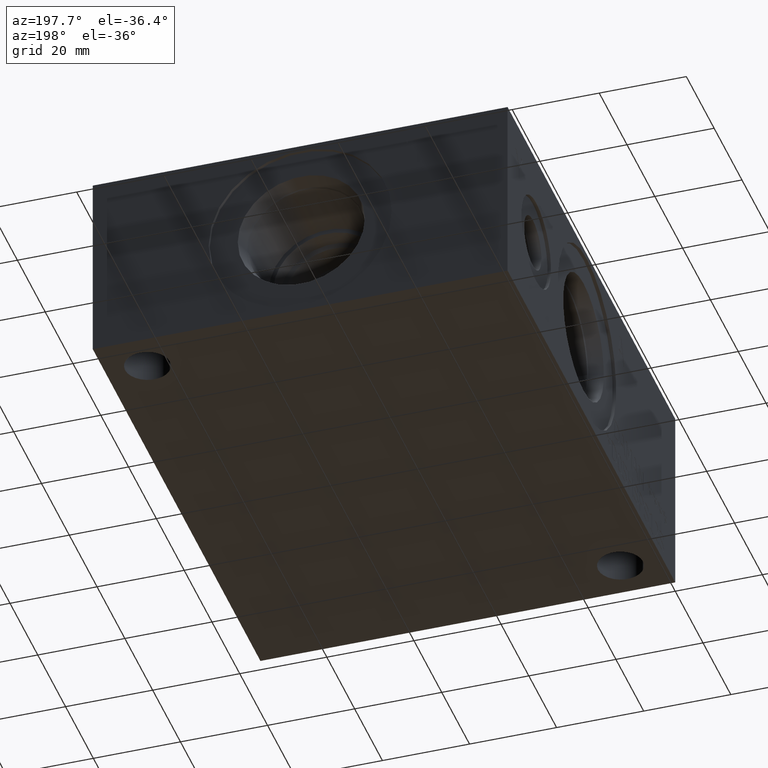
[diagram: clean part render]
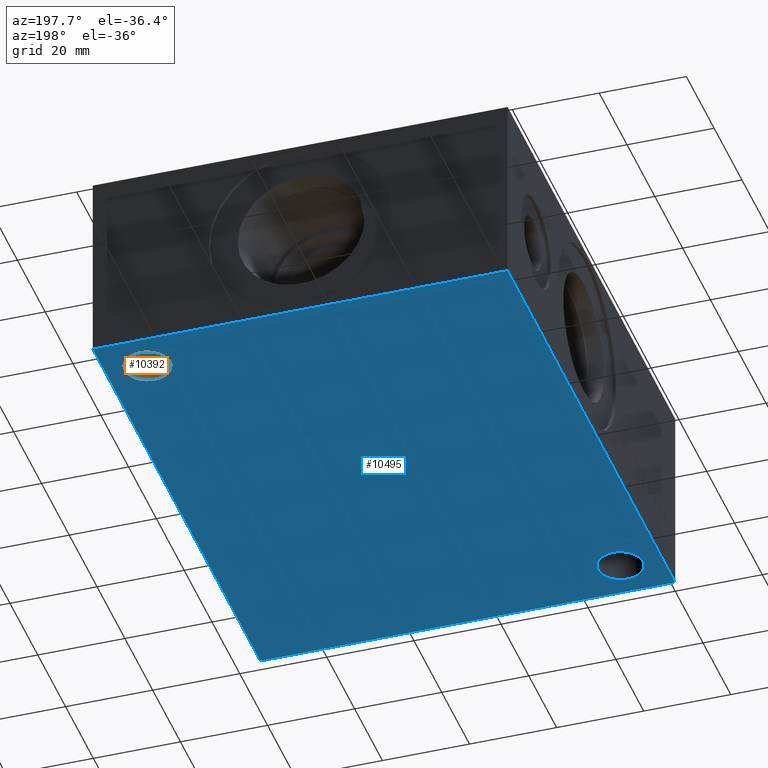
[diagram: same view with the hole feature highlighted: cylindrical wall and planar end face, labeled with their STEP entity ids]
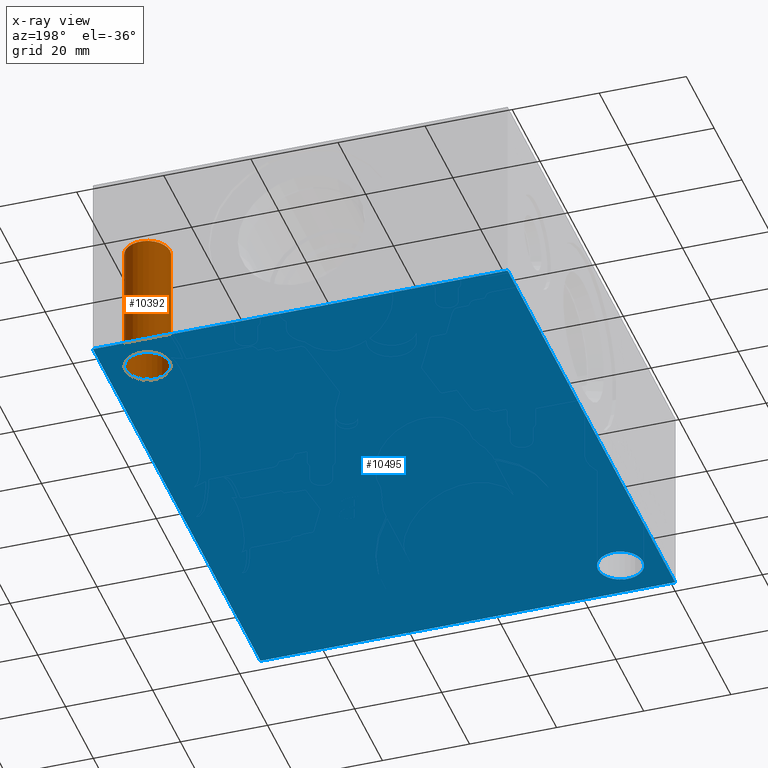
[diagram: x-ray of the same camera — body ghosted, the hole faces saturated]
A machine part, auxiliary view. The highlighted faces form one hole feature of diameter 10.3124 mm: the cylindrical wall (entity #10392, orange) and its adjacent planar end face (entity #10495, blue) — they share a circular edge in the B-rep.
The next image is the same camera in x-ray (body ghosted, the hole faces saturated) — the bore reads through the body.
Wall:
#50=CYLINDRICAL_SURFACE('',#10823,5.1562);
#108=CIRCLE('',#10819,5.1562);
#111=CIRCLE('',#10824,5.1562);
#1173=FACE_OUTER_BOUND('',#1747,.T.);
#1747=EDGE_LOOP('',(#8681,#8682,#8683,#8684));
#2806=LINE('',#17405,#3811);
#3811=VECTOR('',#12645,5.1562);
#4696=VERTEX_POINT('',#17395);
#4699=VERTEX_POINT('',#17404);
#6076=EDGE_CURVE('',#4696,#4696,#108,.T.);
#6080=EDGE_CURVE('',#4696,#4699,#2806,.T.);
#6081=EDGE_CURVE('',#4699,#4699,#111,.T.);
#8681=ORIENTED_EDGE('',*,*,#6076,.T.);
#8682=ORIENTED_EDGE('',*,*,#6080,.T.);
#8683=ORIENTED_EDGE('',*,*,#6081,.F.);
#8684=ORIENTED_EDGE('',*,*,#6080,.F.);
#10392=ADVANCED_FACE('',(#1173),#50,.F.);
#10819=AXIS2_PLACEMENT_3D('',#17396,#12634,#12635);
#10823=AXIS2_PLACEMENT_3D('',#17403,#12643,#12644);
#10824=AXIS2_PLACEMENT_3D('',#17406,#12646,#12647);
#12634=DIRECTION('center_axis',(0.,0.,1.));
#12635=DIRECTION('ref_axis',(1.,0.,0.));
#12643=DIRECTION('center_axis',(0.,0.,1.));
#12644=DIRECTION('ref_axis',(1.,0.,0.));
#12645=DIRECTION('',(0.,0.,-1.));
#12646=DIRECTION('center_axis',(0.,0.,1.));
#12647=DIRECTION('ref_axis',(1.,0.,0.));
#17395=CARTESIAN_POINT('',(80.5688,111.125,30.1752));
#17396=CARTESIAN_POINT('Origin',(85.725,111.125,30.1752));
#17403=CARTESIAN_POINT('Origin',(85.725,111.125,-115.564960238098));
#17404=CARTESIAN_POINT('',(80.5688,111.125,0.));
#17405=CARTESIAN_POINT('',(80.5688,111.125,-115.564960238098));
#17406=CARTESIAN_POINT('Origin',(85.725,111.125,0.));
End face:
#111=CIRCLE('',#10824,5.1562);
#117=CIRCLE('',#10833,5.1562);
#349=FACE_BOUND('',#1882,.T.);
#350=FACE_BOUND('',#1883,.T.);
#1276=FACE_OUTER_BOUND('',#1881,.T.);
#1881=EDGE_LOOP('',(#9219,#9220,#9221,#9222));
#1882=EDGE_LOOP('',(#9223));
#1883=EDGE_LOOP('',(#9224));
#2222=LINE('',#15674,#3227);
#2731=LINE('',#16992,#3736);
#2779=LINE('',#17334,#3784);
#2887=LINE('',#17932,#3892);
#3227=VECTOR('',#11615,10.);
#3736=VECTOR('',#12498,10.);
#3784=VECTOR('',#12578,10.);
#3892=VECTOR('',#13256,10.);
#4254=VERTEX_POINT('',#15672);
#4255=VERTEX_POINT('',#15673);
#4620=VERTEX_POINT('',#16990);
#4621=VERTEX_POINT('',#16991);
#4699=VERTEX_POINT('',#17404);
#4705=VERTEX_POINT('',#17421);
#5421=EDGE_CURVE('',#4254,#4255,#2222,.T.);
#5966=EDGE_CURVE('',#4620,#4621,#2731,.T.);
#6046=EDGE_CURVE('',#4255,#4620,#2779,.T.);
#6081=EDGE_CURVE('',#4699,#4699,#111,.T.);
#6089=EDGE_CURVE('',#4705,#4705,#117,.T.);
#6327=EDGE_CURVE('',#4621,#4254,#2887,.T.);
#9219=ORIENTED_EDGE('',*,*,#6046,.F.);
#9220=ORIENTED_EDGE('',*,*,#5421,.F.);
#9221=ORIENTED_EDGE('',*,*,#6327,.F.);
#9222=ORIENTED_EDGE('',*,*,#5966,.F.);
#9223=ORIENTED_EDGE('',*,*,#6081,.T.);
#9224=ORIENTED_EDGE('',*,*,#6089,.T.);
#9544=PLANE('',#11092);
#10495=ADVANCED_FACE('',(#1276,#349,#350),#9544,.F.);
#10824=AXIS2_PLACEMENT_3D('',#17406,#12646,#12647);
#10833=AXIS2_PLACEMENT_3D('',#17423,#12666,#12667);
#11092=AXIS2_PLACEMENT_3D('',#17937,#13264,#13265);
#11615=DIRECTION('',(0.,-1.,0.));
#12498=DIRECTION('',(0.,1.,0.));
#12578=DIRECTION('',(1.,0.,0.));
#12646=DIRECTION('center_axis',(0.,0.,1.));
#12647=DIRECTION('ref_axis',(1.,0.,0.));
#12666=DIRECTION('center_axis',(0.,0.,1.));
#12667=DIRECTION('ref_axis',(1.,0.,0.));
#13256=DIRECTION('',(-1.,0.,0.));
#13264=DIRECTION('center_axis',(0.,0.,1.));
#13265=DIRECTION('ref_axis',(1.,0.,0.));
#15672=CARTESIAN_POINT('',(0.,120.65,0.));
#15673=CARTESIAN_POINT('',(0.,0.,0.));
#15674=CARTESIAN_POINT('',(0.,120.65,0.));
#16990=CARTESIAN_POINT('',(95.25,0.,0.));
#16991=CARTESIAN_POINT('',(95.25,120.65,0.));
#16992=CARTESIAN_POINT('',(95.25,0.,0.));
#17334=CARTESIAN_POINT('',(0.,0.,0.));
#17404=CARTESIAN_POINT('',(80.5688,111.125,0.));
#17406=CARTESIAN_POINT('Origin',(85.725,111.125,0.));
#17421=CARTESIAN_POINT('',(4.3688,9.525,0.));
#17423=CARTESIAN_POINT('Origin',(9.525,9.525,0.));
#17932=CARTESIAN_POINT('',(95.25,120.65,0.));
#17937=CARTESIAN_POINT('Origin',(47.625,60.325,0.));